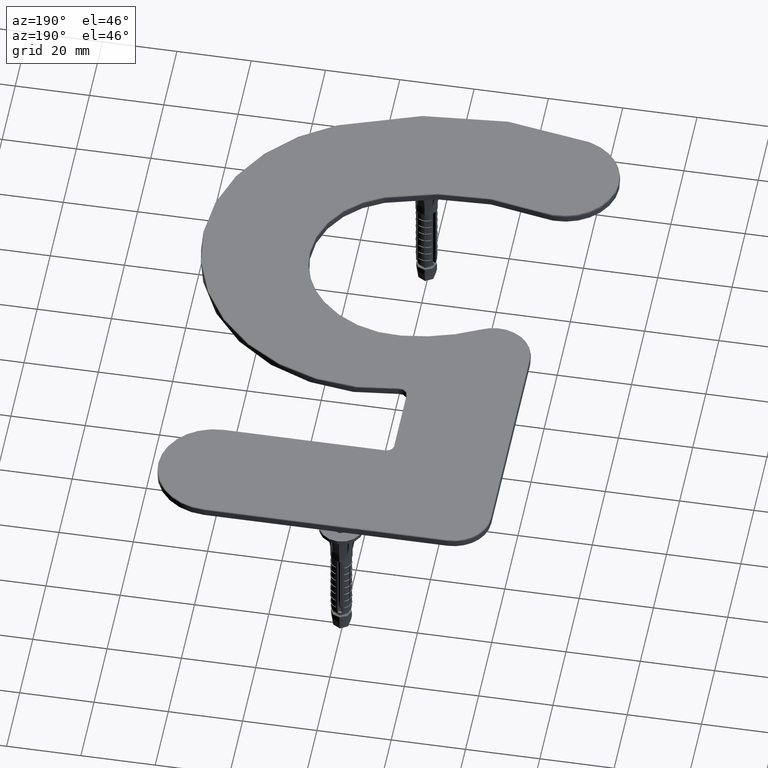
[diagram: clean part render]
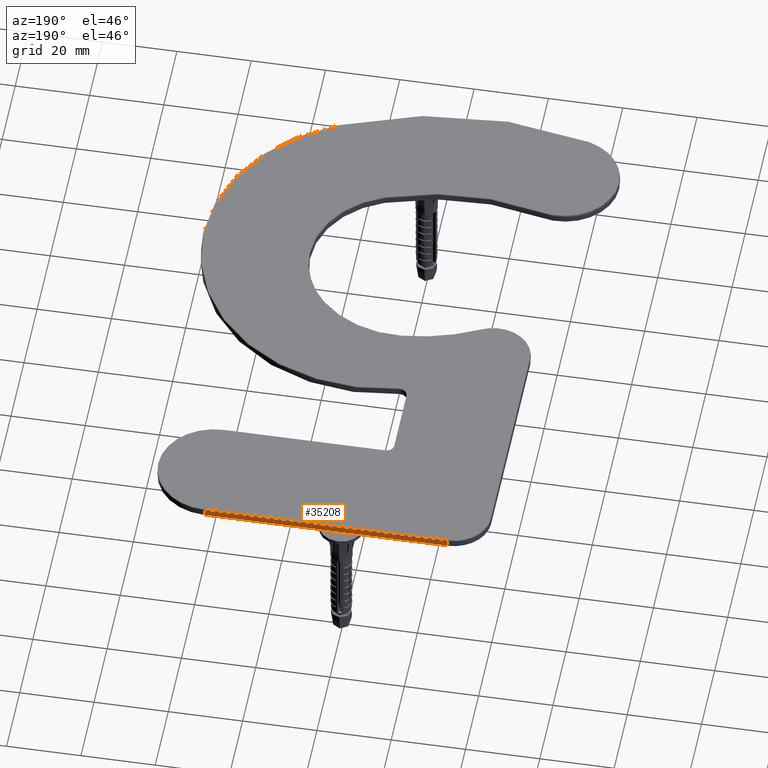
[diagram: same view with one face highlighted and labeled with its STEP entity id]
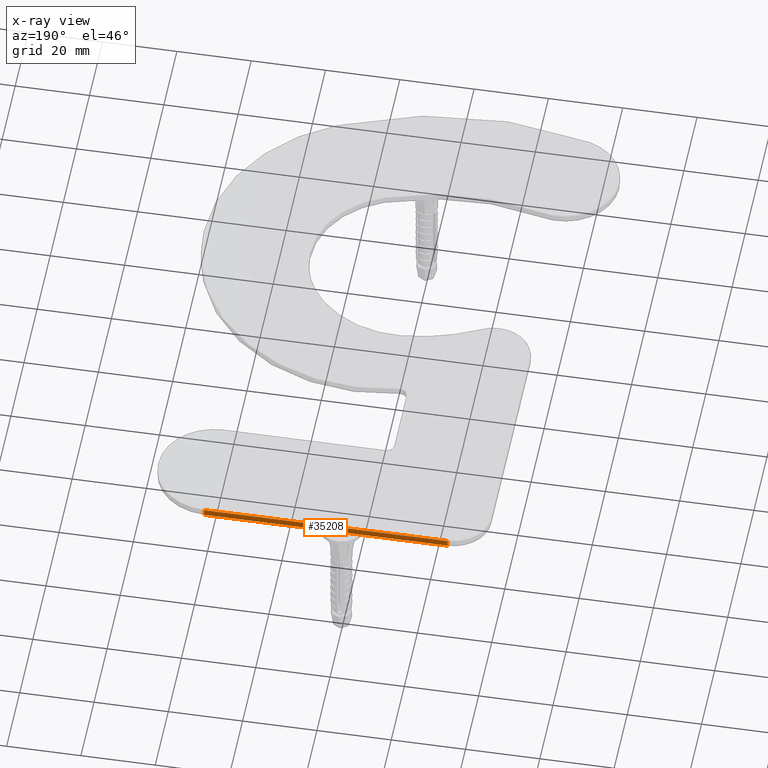
[diagram: x-ray of the same camera — body ghosted, the highlighted face saturated]
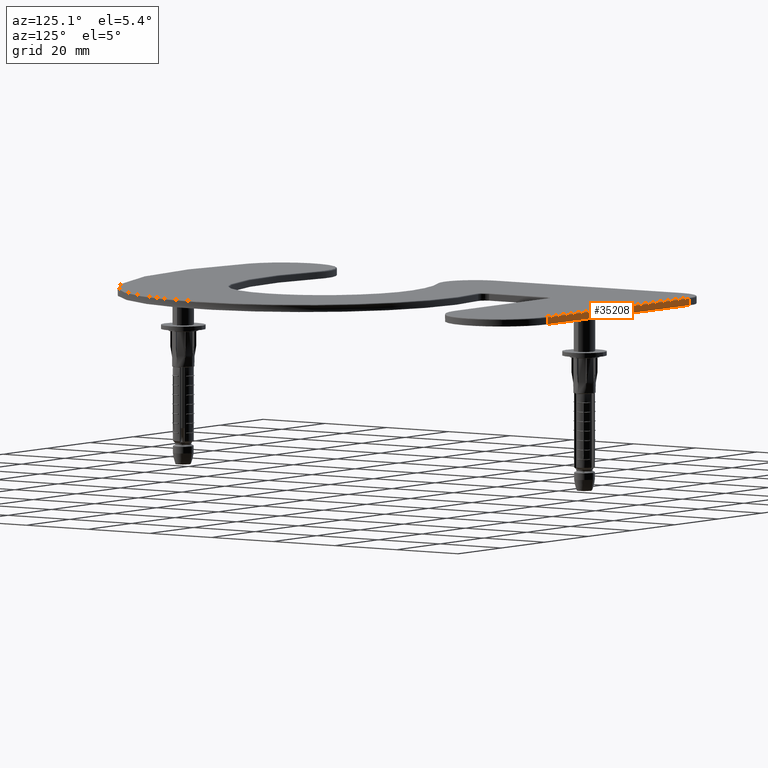
[diagram: same view with one face highlighted and labeled with its STEP entity id]
A machine part, auxiliary view. The second image highlights one B-rep face of the part: STEP entity #35208.
The next image is the same camera in x-ray: the body ghosted, the highlighted face saturated — about 0% of this face is hidden behind the body in this view.
A second angle (auxiliary view) of the same face is appended — the face is thin or edge-on in the first view.
In plain terms, the highlighted planar face has unit normal (0, -1, 0).
Its self-contained STEP definition (entity closure, byte-faithful):
#220 = LINE ( 'NONE', #9061, #10212 ) ;
#1048 = CARTESIAN_POINT ( 'NONE',  ( 34.75000000000000711, 155.0000000000000284, 2.000000000000000000 ) ) ;
#1696 = AXIS2_PLACEMENT_3D ( 'NONE', #1048, #28466, #22613 ) ;
#1829 = LINE ( 'NONE', #33115, #32845 ) ;
#2789 = VERTEX_POINT ( 'NONE', #27252 ) ;
#4414 = VERTEX_POINT ( 'NONE', #30449 ) ;
#9061 = CARTESIAN_POINT ( 'NONE',  ( -30.74999999999991473, 155.0000000000000000, 2.000000000000000000 ) ) ;
#10212 = VECTOR ( 'NONE', #33056, 1000.000000000000000 ) ;
#10388 = EDGE_CURVE ( 'NONE', #30799, #2789, #1829, .T. ) ;
#11447 = CARTESIAN_POINT ( 'NONE',  ( 34.75000000000000711, 155.0000000000000284, 2.000000000000000000 ) ) ;
#12124 = EDGE_CURVE ( 'NONE', #4414, #30092, #19390, .T. ) ;
#12569 = ORIENTED_EDGE ( 'NONE', *, *, #10388, .T. ) ;
#14822 = CARTESIAN_POINT ( 'NONE',  ( 34.75000000000000711, 155.0000000000000284, 1.750000000000000000 ) ) ;
#15029 = VECTOR ( 'NONE', #32755, 1000.000000000000000 ) ;
#15936 = DIRECTION ( 'NONE',  ( 1.000000000000000000, 4.237492460401365926E-16, -0.000000000000000000 ) ) ;
#16059 = VECTOR ( 'NONE', #15936, 1000.000000000000000 ) ;
#19390 = LINE ( 'NONE', #31096, #16059 ) ;
#22613 = DIRECTION ( 'NONE',  ( 1.000000000000000000, 4.237492460401365926E-16, 0.000000000000000000 ) ) ;
#24076 = FACE_OUTER_BOUND ( 'NONE', #24384, .T. ) ;
#24311 = CARTESIAN_POINT ( 'NONE',  ( 34.75000000000000711, 155.0000000000000284, 0.000000000000000000 ) ) ;
#24384 = EDGE_LOOP ( 'NONE', ( #31129, #28983, #35741, #12569 ) ) ;
#24509 = LINE ( 'NONE', #11447, #15029 ) ;
#27252 = CARTESIAN_POINT ( 'NONE',  ( -30.74999999999991473, 155.0000000000000000, 0.000000000000000000 ) ) ;
#27741 = PLANE ( 'NONE',  #1696 ) ;
#28466 = DIRECTION ( 'NONE',  ( 4.237492460401365926E-16, -1.000000000000000000, 0.000000000000000000 ) ) ;
#28983 = ORIENTED_EDGE ( 'NONE', *, *, #12124, .T. ) ;
#30092 = VERTEX_POINT ( 'NONE', #14822 ) ;
#30449 = CARTESIAN_POINT ( 'NONE',  ( -30.74999999999991473, 155.0000000000000000, 1.750000000000000000 ) ) ;
#30799 = VERTEX_POINT ( 'NONE', #24311 ) ;
#31096 = CARTESIAN_POINT ( 'NONE',  ( 34.75000000000000711, 155.0000000000000284, 1.750000000000000000 ) ) ;
#31129 = ORIENTED_EDGE ( 'NONE', *, *, #35863, .F. ) ;
#32755 = DIRECTION ( 'NONE',  ( -0.000000000000000000, -0.000000000000000000, -1.000000000000000000 ) ) ;
#32845 = VECTOR ( 'NONE', #32979, 1000.000000000000000 ) ;
#32979 = DIRECTION ( 'NONE',  ( -1.000000000000000000, -4.237492460401365926E-16, 0.000000000000000000 ) ) ;
#33056 = DIRECTION ( 'NONE',  ( -0.000000000000000000, -0.000000000000000000, -1.000000000000000000 ) ) ;
#33115 = CARTESIAN_POINT ( 'NONE',  ( 34.75000000000000711, 155.0000000000000284, 0.000000000000000000 ) ) ;
#35208 = ADVANCED_FACE ( 'NONE', ( #24076 ), #27741, .F. ) ;
#35741 = ORIENTED_EDGE ( 'NONE', *, *, #36111, .T. ) ;
#35863 = EDGE_CURVE ( 'NONE', #4414, #2789, #220, .T. ) ;
#36111 = EDGE_CURVE ( 'NONE', #30092, #30799, #24509, .T. ) ;